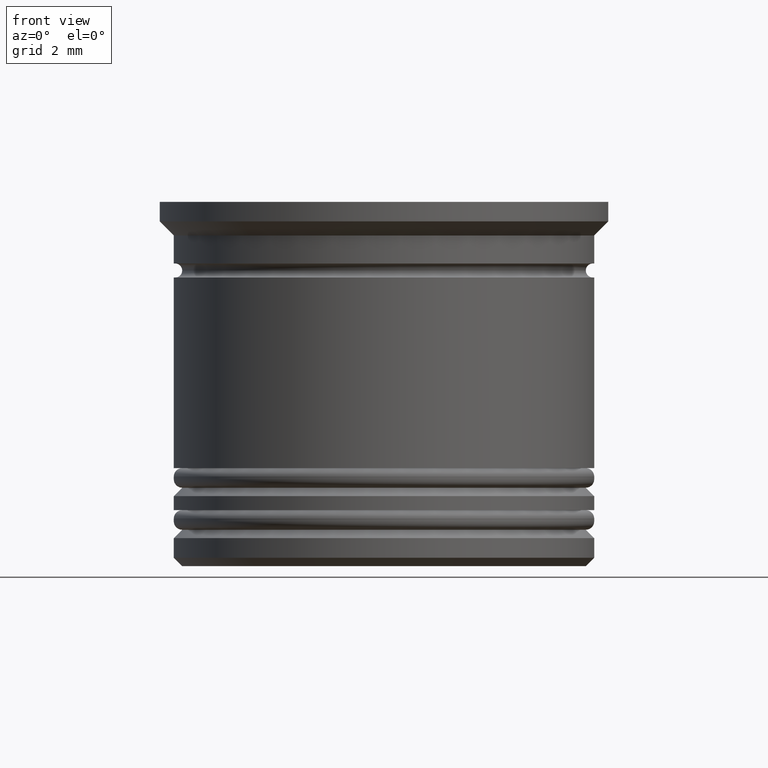
[diagram: clean part render]
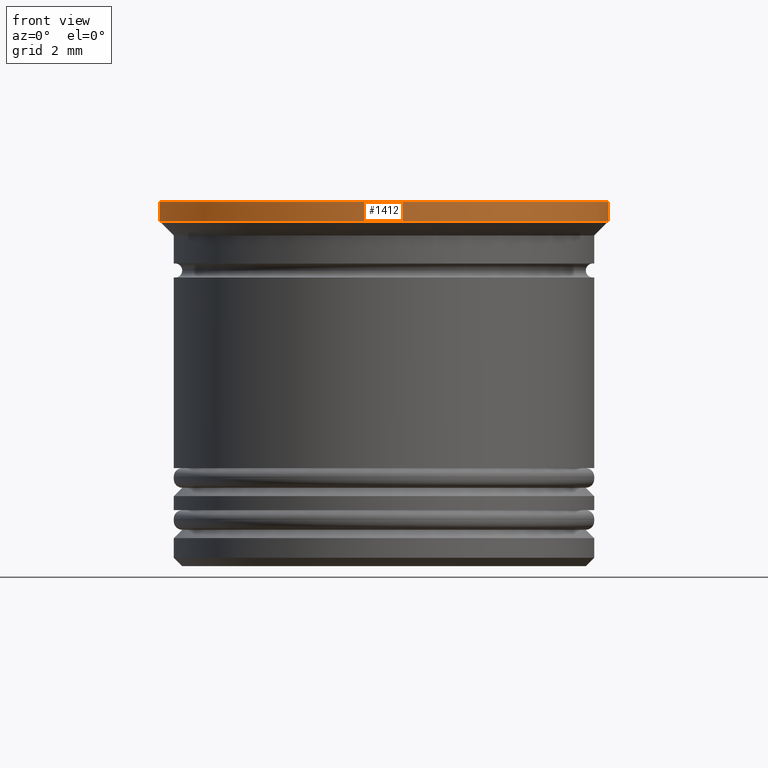
[diagram: same view with one face highlighted and labeled with its STEP entity id]
A machine part, front view. The second image highlights one B-rep face of the part: STEP entity #1412.
In plain terms, the highlighted cylindrical surface (partial cylindrical patch) has radius 8 mm, axis along (-0, -0, 1).
Its self-contained STEP definition (entity closure, byte-faithful):
#10 = VERTEX_POINT ( 'NONE', #527 ) ;
#45 = CARTESIAN_POINT ( 'NONE',  ( 8.000000000000000000, 0.000000000000000000, 0.000000000000000000 ) ) ;
#58 = FACE_OUTER_BOUND ( 'NONE', #1671, .T. ) ;
#184 = CARTESIAN_POINT ( 'NONE',  ( 0.000000000000000000, 0.000000000000000000, 0.000000000000000000 ) ) ;
#185 = AXIS2_PLACEMENT_3D ( 'NONE', #1146, #329, #986 ) ;
#196 = CARTESIAN_POINT ( 'NONE',  ( 8.000000000000000000, 0.000000000000000000, 0.000000000000000000 ) ) ;
#225 = CARTESIAN_POINT ( 'NONE',  ( -8.000000000000000000, 9.797174393178825657E-16, -0.7000000000000005107 ) ) ;
#287 = EDGE_CURVE ( 'NONE', #434, #1607, #815, .T. ) ;
#288 = ORIENTED_EDGE ( 'NONE', *, *, #882, .T. ) ;
#329 = DIRECTION ( 'NONE',  ( -0.000000000000000000, -0.000000000000000000, 1.000000000000000000 ) ) ;
#342 = DIRECTION ( 'NONE',  ( -0.000000000000000000, -0.000000000000000000, 1.000000000000000000 ) ) ;
#384 = DIRECTION ( 'NONE',  ( 1.000000000000000000, 0.000000000000000000, 0.000000000000000000 ) ) ;
#434 = VERTEX_POINT ( 'NONE', #1370 ) ;
#457 = AXIS2_PLACEMENT_3D ( 'NONE', #672, #807, #384 ) ;
#458 = DIRECTION ( 'NONE',  ( -0.000000000000000000, -0.000000000000000000, 1.000000000000000000 ) ) ;
#527 = CARTESIAN_POINT ( 'NONE',  ( -8.000000000000000000, 9.797174393178825657E-16, 0.000000000000000000 ) ) ;
#660 = DIRECTION ( 'NONE',  ( -0.000000000000000000, -0.000000000000000000, 1.000000000000000000 ) ) ;
#672 = CARTESIAN_POINT ( 'NONE',  ( 0.000000000000000000, 0.000000000000000000, 0.000000000000000000 ) ) ;
#807 = DIRECTION ( 'NONE',  ( -0.000000000000000000, -0.000000000000000000, 1.000000000000000000 ) ) ;
#815 = LINE ( 'NONE', #45, #833 ) ;
#833 = VECTOR ( 'NONE', #660, 1000.000000000000000 ) ;
#841 = ORIENTED_EDGE ( 'NONE', *, *, #1033, .F. ) ;
#882 = EDGE_CURVE ( 'NONE', #1472, #434, #1553, .T. ) ;
#943 = ORIENTED_EDGE ( 'NONE', *, *, #1643, .F. ) ;
#986 = DIRECTION ( 'NONE',  ( -1.000000000000000000, 0.000000000000000000, 0.000000000000000000 ) ) ;
#1033 = EDGE_CURVE ( 'NONE', #10, #1607, #1165, .T. ) ;
#1074 = DIRECTION ( 'NONE',  ( 1.000000000000000000, 0.000000000000000000, 0.000000000000000000 ) ) ;
#1127 = LINE ( 'NONE', #1255, #1940 ) ;
#1146 = CARTESIAN_POINT ( 'NONE',  ( 0.000000000000000000, 0.000000000000000000, -0.7000000000000005107 ) ) ;
#1165 = CIRCLE ( 'NONE', #1340, 8.000000000000000000 ) ;
#1255 = CARTESIAN_POINT ( 'NONE',  ( -8.000000000000000000, 9.797174393178825657E-16, 0.000000000000000000 ) ) ;
#1288 = CYLINDRICAL_SURFACE ( 'NONE', #457, 8.000000000000000000 ) ;
#1340 = AXIS2_PLACEMENT_3D ( 'NONE', #184, #458, #1074 ) ;
#1370 = CARTESIAN_POINT ( 'NONE',  ( 8.000000000000000000, 0.000000000000000000, -0.7000000000000005107 ) ) ;
#1412 = ADVANCED_FACE ( 'NONE', ( #58 ), #1288, .T. ) ;
#1472 = VERTEX_POINT ( 'NONE', #225 ) ;
#1517 = ORIENTED_EDGE ( 'NONE', *, *, #287, .T. ) ;
#1553 = CIRCLE ( 'NONE', #185, 8.000000000000000000 ) ;
#1607 = VERTEX_POINT ( 'NONE', #196 ) ;
#1643 = EDGE_CURVE ( 'NONE', #1472, #10, #1127, .T. ) ;
#1671 = EDGE_LOOP ( 'NONE', ( #943, #288, #1517, #841 ) ) ;
#1940 = VECTOR ( 'NONE', #342, 1000.000000000000000 ) ;